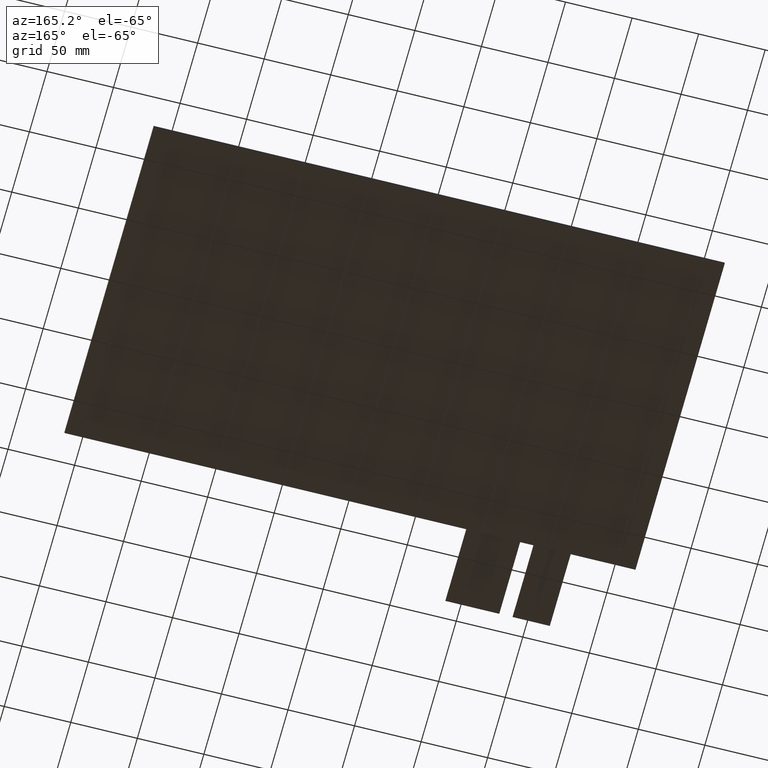
[diagram: clean part render]
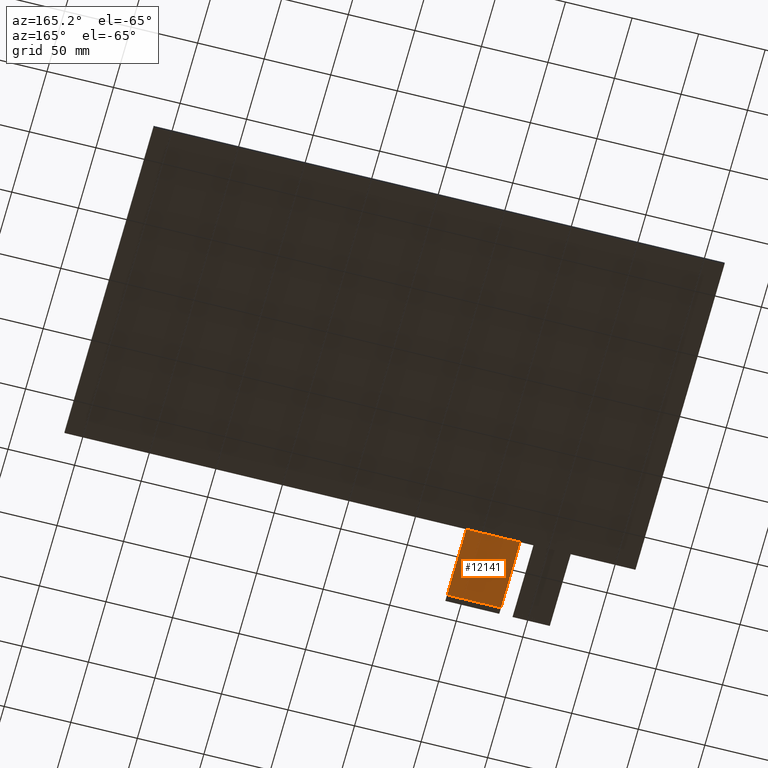
[diagram: same view with one face highlighted and labeled with its STEP entity id]
A machine part, auxiliary view. The second image highlights one B-rep face of the part: STEP entity #12141.
In plain terms, the highlighted planar face has unit normal (0, 0, -1).
Its self-contained STEP definition (entity closure, byte-faithful):
#683=PLANE('',#12747);
#1261=FACE_OUTER_BOUND('',#1839,.T.);
#1839=EDGE_LOOP('',(#11479,#11480,#11481,#11482));
#3510=LINE('',#18964,#5218);
#3516=LINE('',#18975,#5224);
#3525=LINE('',#18994,#5233);
#3529=LINE('',#19001,#5237);
#5218=VECTOR('',#15534,10.);
#5224=VECTOR('',#15542,10.);
#5233=VECTOR('',#15561,10.);
#5237=VECTOR('',#15569,10.);
#6393=VERTEX_POINT('',#18961);
#6394=VERTEX_POINT('',#18963);
#6398=VERTEX_POINT('',#18973);
#6403=VERTEX_POINT('',#18993);
#8086=EDGE_CURVE('',#6394,#6393,#3510,.T.);
#8092=EDGE_CURVE('',#6393,#6398,#3516,.T.);
#8101=EDGE_CURVE('',#6403,#6394,#3525,.T.);
#8105=EDGE_CURVE('',#6403,#6398,#3529,.T.);
#11479=ORIENTED_EDGE('',*,*,#8086,.T.);
#11480=ORIENTED_EDGE('',*,*,#8092,.T.);
#11481=ORIENTED_EDGE('',*,*,#8105,.F.);
#11482=ORIENTED_EDGE('',*,*,#8101,.T.);
#12141=ADVANCED_FACE('',(#1261),#683,.T.);
#12747=AXIS2_PLACEMENT_3D('',#19000,#15567,#15568);
#15534=DIRECTION('',(-1.,0.,0.));
#15542=DIRECTION('',(-2.96059473233375E-16,1.,0.));
#15561=DIRECTION('',(-8.88178419700127E-16,-1.,0.));
#15567=DIRECTION('center_axis',(0.,0.,-1.));
#15568=DIRECTION('ref_axis',(-1.,0.,0.));
#15569=DIRECTION('',(-1.,-1.24220758000017E-16,0.));
#18961=CARTESIAN_POINT('',(-129.8,-185.5,-1.2));
#18963=CARTESIAN_POINT('',(-89.2999999999999,-185.5,-1.2));
#18964=CARTESIAN_POINT('',(-99.4249999999999,-185.5,-1.2));
#18973=CARTESIAN_POINT('',(-129.8,-130.5,-1.2));
#18975=CARTESIAN_POINT('',(-129.8,-130.5,-1.2));
#18993=CARTESIAN_POINT('',(-89.2999999999999,-130.5,-1.2));
#18994=CARTESIAN_POINT('',(-89.3,-190.5,-1.2));
#19000=CARTESIAN_POINT('Origin',(-109.55,-160.5,-1.2));
#19001=CARTESIAN_POINT('',(51.575,-130.5,-1.2));